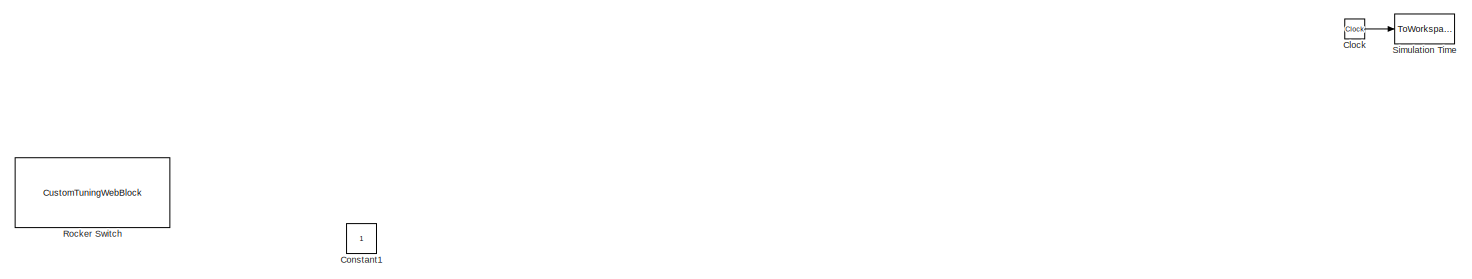
[diagram: root canvas - part 1/5, top left region]
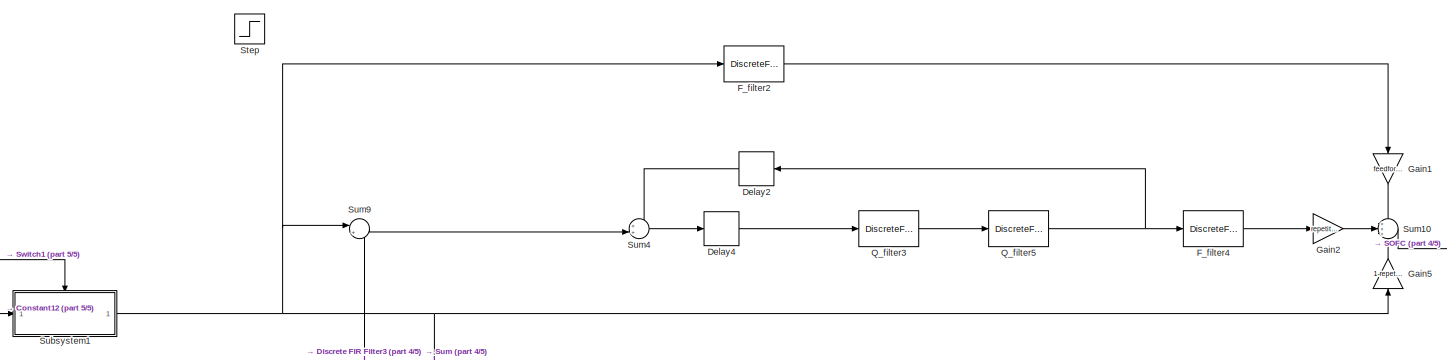
[diagram: root canvas - part 2/5, bottom center region]
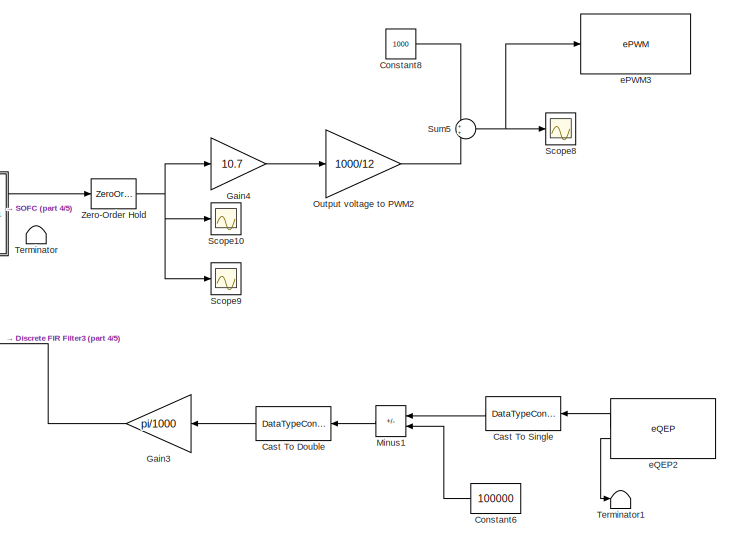
[diagram: root canvas - part 3/5, bottom right region]
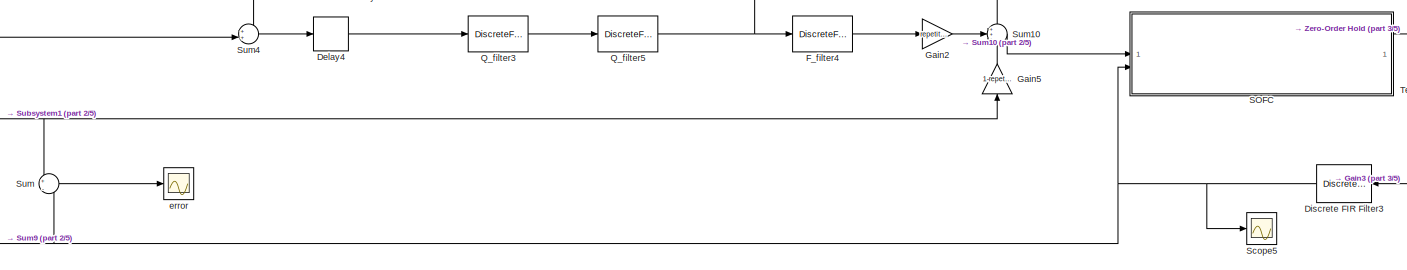
[diagram: root canvas - part 4/5, bottom center region]
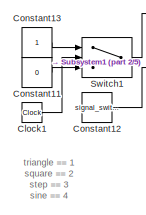
[diagram: root canvas - part 5/5, bottom left region]
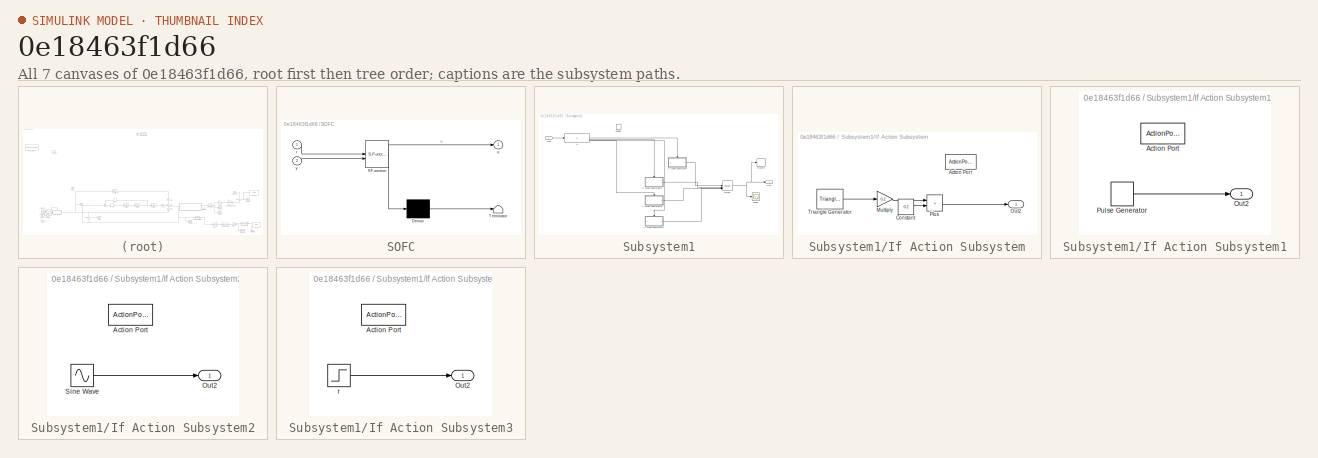
[diagram: thumbnail index - all 7 canvases of the model, root first then tree order]
MODEL slx_0e18463f1d66
KIND model
CONFIG AbsTol = auto
CONFIG EnableMultiTasking = on
CONFIG FixedStep = auto
CONFIG MaxStep = auto
CONFIG MinStep = auto
CONFIG RelTol = 1e-3
CONFIG SampleTimeConstraint = Unconstrained
CONFIG SolverName = FixedStepAuto
CONFIG StartTime = 0.0
CONFIG StopTime = Inf
BLOCK [DataTypeConversion] Cast To Double
  OutDataTypeStr = double
  RndMeth = Floor
  SaturateOnIntegerOverflow = off
BLOCK [DataTypeConversion] Cast To Single
  OutDataTypeStr = int32
  RndMeth = Floor
  SaturateOnIntegerOverflow = off
BLOCK [Clock] Clock
BLOCK [Clock] Clock1
BLOCK [Constant] Constant1
BLOCK [Constant] Constant11
  Value = 0
BLOCK [Constant] Constant12
  Value = signal_switch
BLOCK [Constant] Constant13
BLOCK [Constant] Constant6
  OutDataTypeStr = int32
  Value = 100000
BLOCK [Constant] Constant8
  Value = 1000
BLOCK [Delay] Delay2
  DelayLength = N1
  InputPortMap = u0
  SampleTime = Ts
BLOCK [Delay] Delay4
  DelayLength = Np-N1-N2
  InputPortMap = u0
  SampleTime = Ts
BLOCK [DiscreteFir] Discrete FIR Filter3
  Coefficients = [1]
  InputPortMap = u0
  OutputPortMap = o0
  SampleTime = Ts
BLOCK [DiscreteFilter] F_filter2
  Denominator = F_filter2_denom
  InputPortMap = u0
  Numerator = F_filter2_num
  SampleTime = Ts
BLOCK [DiscreteFilter] F_filter4
  Denominator = F_filter_denom
  InputPortMap = u0
  Numerator = real(F_filter_num)
  SampleTime = Ts
BLOCK [Gain] Gain1
  Gain = feedforward_switch
  NameLocation = left
BLOCK [Gain] Gain2
  Gain = repetitive_switch
BLOCK [Gain] Gain3
  Gain = pi/1000
BLOCK [Gain] Gain4
  Gain = 10.7
BLOCK [Gain] Gain5
  Gain = 1-repetitive_switch
  NameLocation = right
BLOCK [Sum] Minus1
  IconShape = rectangular
  Inputs = +-
BLOCK [Gain] Output voltage to PWM2
  Gain = 1000/12
BLOCK [DiscreteFilter] Q_filter3
  Denominator = Q_filter_denom
  InputPortMap = u0
  Numerator = Q_filter_num
  SampleTime = Ts
BLOCK [DiscreteFilter] Q_filter5
  Denominator = Q_filter_denom
  InputPortMap = u0
  Numerator = Q_filter_num
  SampleTime = Ts
BLOCK [CustomTuningWebBlock] Rocker Switch
  Configuration = {"components":[{"name":"CustomSwitchStateComponent","settings":{"position":[0,0,1,1],"states":[{"HitRegion":{"position":[0,0,0.5,1]},"Image":{"position":[0.13,0,1,0.75],"size":[1,0.75],"src":"data:image\/svg+xml;base64,PHN2ZyB4bWxucz0iaHR0cDovL3d3dy53My5vcmcvMjAwMC9zdmciIHhtbG5zOnhsaW5rPSJodHRwOi8vd3d3LnczLm9yZy8xOTk5L3hsaW5rIiB2aWV3Qm94PSIwIDAgNzUgMjQuOCI+PGRlZnM+PHN0eWxlPi5jbHMtMXtmaWxsOnVybCgjc...<+9002ch>
  LabelPosition = Hide
  ShowInitialText = on
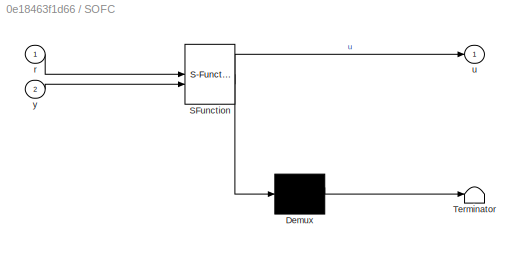
BLOCK [SubSystem] SOFC
  ErrorFcn = Stateflow.Translate.translate
  PermitHierarchicalResolution = ExplicitOnly
  SFBlockType = MATLAB Function
  TreatAsAtomicUnit = on
BLOCK [Demux] SOFC/ Demux 
  Outputs = 1
BLOCK [S-Function] SOFC/ SFunction 
  EnableBusSupport = on
  FunctionName = sf_sfun
  Parameters = A,B,C,K,L,N
  PortCounts = [2 2]
  SFcnIsStateOwnerBlock = off
  SFunctionDeploymentMode = off
  Tag = Stateflow S-Function 1
BLOCK [Terminator] SOFC/ Terminator 
BLOCK [Inport] SOFC/r
BLOCK [Outport] SOFC/u
BLOCK [Inport] SOFC/y
  Port = 2
BLOCK [Scope] Scope10
  Floating = off
  NumInputPorts = 1
  ScopeSpecificationString = Simulink.scopes.TimeScopeBlockCfg('CurrentConfiguration', extmgr.ConfigurationSet(extmgr.Configuration('Core','General UI',true),extmgr.Configuration('Core','Source UI',true),extmgr.Configuration('Sources','WiredSimulink',true,'DataLoggingVariableName','ScopeData3'),extmgr.Configuration('Visuals','Time Domain',true,'SerializedDisplays',{struct('MinYLimReal','-1.25','MaxYLimReal','1.25','YLabelReal...<+1408ch>
BLOCK [Scope] Scope5
  Floating = off
  NumInputPorts = 1
  ScopeSpecificationString = Simulink.scopes.TimeScopeBlockCfg('CurrentConfiguration', extmgr.ConfigurationSet(extmgr.Configuration('Core','General UI',true),extmgr.Configuration('Core','Source UI',true),extmgr.Configuration('Sources','WiredSimulink',true,'DataLoggingVariableName','ScopeData1'),extmgr.Configuration('Visuals','Time Domain',true,'SerializedDisplays',{struct('MinYLimReal','-0.51836','MaxYLimReal','4.63385','YLab...<+1411ch>
BLOCK [Scope] Scope8
  Floating = off
  NumInputPorts = 1
  ScopeSpecificationString = Simulink.scopes.TimeScopeBlockCfg('CurrentConfiguration', extmgr.ConfigurationSet(extmgr.Configuration('Core','General UI',true),extmgr.Configuration('Core','Source UI',true),extmgr.Configuration('Sources','WiredSimulink',true,'DataLoggingVariableName','ScopeData3'),extmgr.Configuration('Visuals','Time Domain',true,'SerializedDisplays',{struct('MinYLimReal','-114.58337','MaxYLimReal','2114.58343',...<+1436ch>
BLOCK [Scope] Scope9
  Floating = off
  NumInputPorts = 1
  ScopeSpecificationString = Simulink.scopes.TimeScopeBlockCfg('CurrentConfiguration', extmgr.ConfigurationSet(extmgr.Configuration('Core','General UI',true),extmgr.Configuration('Core','Source UI',true),extmgr.Configuration('Sources','WiredSimulink',true,'DataLoggingVariableName','ScopeData2'),extmgr.Configuration('Visuals','Time Domain',true,'SerializedDisplays',{struct('MinYLimReal','-1.25','MaxYLimReal','1.25','YLabelReal...<+1411ch>
BLOCK [ToWorkspace] Simulation Time
  FixptAsFi = on
  MaxDataPoints = inf
  SampleTime = -1
  VariableName = SimTime
BLOCK [Step] Step
  After = pi/2
  Before = 0.000001
  SampleTime = Ts
  Time = 15
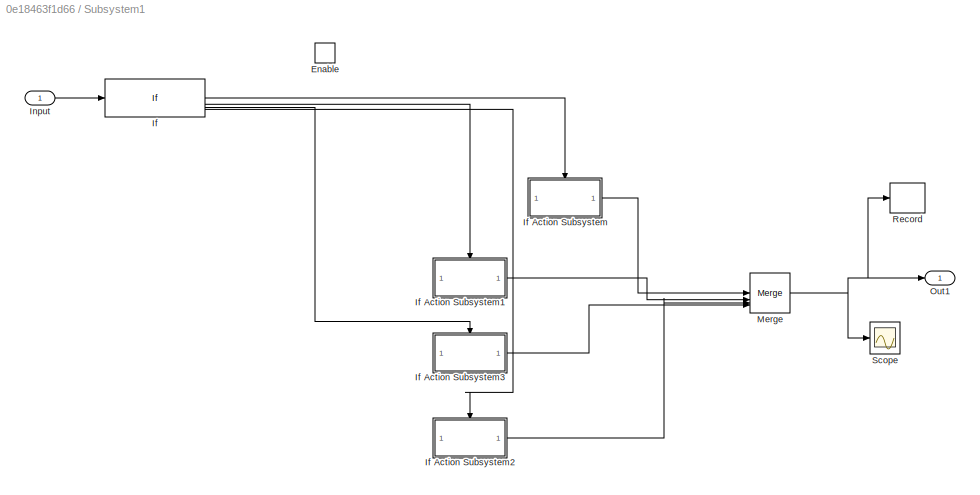
BLOCK [SubSystem] Subsystem1
BLOCK [EnablePort] Subsystem1/Enable
BLOCK [If] Subsystem1/If
  ElseIfExpressions = u1 == 2,u1==3
  IfExpression = u1 == 1
BLOCK [SubSystem] Subsystem1/If Action Subsystem
  TreatAsAtomicUnit = on
BLOCK [ActionPort] Subsystem1/If Action Subsystem/Action Port
BLOCK [Constant] Subsystem1/If Action Subsystem/Constant
  Value = 0.2
BLOCK [Gain] Subsystem1/If Action Subsystem/Multiply
  Gain = 0.2
BLOCK [Outport] Subsystem1/If Action Subsystem/Out2
BLOCK [Sum] Subsystem1/If Action Subsystem/Plus
  IconShape = rectangular
BLOCK [Reference] Subsystem1/If Action Subsystem/Triangle Generator  REF=spsTriangleGeneratorLib/Triangle
Generator
  LibrarySourceBlock = sps_lib/Sources/Signal Generator Sources/Triangle\nGenerator
  SourceBlock = spsTriangleGeneratorLib/Triangle\nGenerator
  SourceType = Triangle Generator
BLOCK [SubSystem] Subsystem1/If Action Subsystem1
  TreatAsAtomicUnit = on
BLOCK [ActionPort] Subsystem1/If Action Subsystem1/Action Port
BLOCK [Outport] Subsystem1/If Action Subsystem1/Out2
BLOCK [DiscretePulseGenerator] Subsystem1/If Action Subsystem1/Pulse Generator
  Amplitude = 0.4
  Period = 1/d_hz/Ts
  PulseWidth = 1/d_hz/2/Ts
  SampleTime = Ts
BLOCK [SubSystem] Subsystem1/If Action Subsystem2
  TreatAsAtomicUnit = on
BLOCK [ActionPort] Subsystem1/If Action Subsystem2/Action Port
BLOCK [Outport] Subsystem1/If Action Subsystem2/Out2
BLOCK [Sin] Subsystem1/If Action Subsystem2/Sine Wave
  Amplitude = 0.2
  Bias = 0.2
  Offset = 0.75*1/d_hz/Ts
  SampleTime = Ts
  Samples = 1/d_hz/Ts
  SineType = Sample based
BLOCK [SubSystem] Subsystem1/If Action Subsystem3
  TreatAsAtomicUnit = on
BLOCK [ActionPort] Subsystem1/If Action Subsystem3/Action Port
BLOCK [Outport] Subsystem1/If Action Subsystem3/Out2
BLOCK [Step] Subsystem1/If Action Subsystem3/r
  After = pi
  SampleTime = Ts
BLOCK [Inport] Subsystem1/Input
BLOCK [Merge] Subsystem1/Merge
  Inputs = 4
BLOCK [Outport] Subsystem1/Out1
BLOCK [Record] Subsystem1/Record
  FileSettingsInternal = {"entries":[{"content":{"excelSettings":{"content":{},"type":"Streamout.ExcelSettings"}},"type":"Streamout.FileSettingStorage","uuid":"050de38f-e3df-4709-aaf6-77aa2d34a637"}],"packageUris":["http://schema.mathworks.com/mf0/streamout_blocks/R2020a"],"version":"1.0"}
  Layout = [1 1]
  SignalsInternal = {"entries":[{"content":{"signals":[{"content":{"blockPath":["repetitive_control_experiment/Subsystem1/Record"],"channel":[],"dimensions":[1],"domain":"repetitive_control_experiment/Subsystem1/Record","lineColor":"#22b573","plots":[1],"port":1,"sid":[],"signalID":413,"signalName":"Merge"},"type":"RecordBlkView.Signal","uuid":"e4e628c4-692f-4f96-954e-0f0ac135052c"}]},"type":"RecordBlkView.InputSigna...<+142ch>
  VisualizationBindings = {"sparklinesplugin":{"info":[{"bindingParametersList":[],"subplotID":1}]}}
BLOCK [Scope] Subsystem1/Scope
  Floating = off
  NumInputPorts = 1
  ScopeSpecificationString = Simulink.scopes.TimeScopeBlockCfg('CurrentConfiguration', extmgr.ConfigurationSet(extmgr.Configuration('Core','General UI',true),extmgr.Configuration('Core','Source UI',true),extmgr.Configuration('Sources','WiredSimulink',true,'DataLoggingVariableName','ScopeData1'),extmgr.Configuration('Visuals','Time Domain',true,'SerializedDisplays',{struct('MinYLimReal','-0.05','MaxYLimReal','0.45','YLabelReal...<+1402ch>
BLOCK [Sum] Sum
  Inputs = +|-
BLOCK [Sum] Sum10
  Inputs = +++
BLOCK [Sum] Sum4
  Inputs = ++|
BLOCK [Sum] Sum5
BLOCK [Sum] Sum9
  Inputs = |+-
BLOCK [Switch] Switch1
  Criteria = u2 > Threshold
  InputSameDT = off
  SaturateOnIntegerOverflow = off
  Threshold = 1
BLOCK [Terminator] Terminator
BLOCK [Terminator] Terminator1
BLOCK [ZeroOrderHold] Zero-Order Hold
  SampleTime = Ts
BLOCK [Reference] ePWM3  REF=c2802xlib/ePWM
  SourceBlock = c2802xlib/ePWM
  SourceType = ePWM Type 1-4
  UserDataPersistent = on
BLOCK [Reference] eQEP2  REF=c280xlib/eQEP
  LibrarySourceBlock = c2837xDlib/eQEP
  SourceBlock = c280xlib/eQEP
  SourceType = C28x eQEP
BLOCK [Scope] error
  Floating = off
  NumInputPorts = 1
  ScopeSpecificationString = Simulink.scopes.TimeScopeBlockCfg('CurrentConfiguration', extmgr.ConfigurationSet(extmgr.Configuration('Core','General UI',true),extmgr.Configuration('Core','Source UI',true),extmgr.Configuration('Sources','WiredSimulink',true,'DataLoggingVariableName','ScopeData1'),extmgr.Configuration('Visuals','Time Domain',true),extmgr.Configuration('Tools','Plot Navigation',true),extmgr.Configuration('Tools',...<+58ch>
ANNOTATION (root): triangle == 1 square == 2 step == 3 sine == 4
LINE Cast To Double:1 -> Gain3:1
LINE Cast To Single:1 -> Minus1:1
LINE Clock1:1 -> Switch1:2
LINE Clock:1 -> Simulation Time:1
LINE Constant11:1 -> Switch1:3
LINE Constant12:1 -> Subsystem1:1
LINE Constant13:1 -> Switch1:1
LINE Constant6:1 -> Minus1:2
LINE Constant8:1 -> Sum5:1
LINE Delay2:1 -> Sum4:1
LINE Delay4:1 -> Q_filter3:1
NET Discrete FIR Filter3:1 -> SOFC:2, Scope5:1, Sum9:2, Sum:2
LINE F_filter2:1 -> Gain1:1
LINE F_filter4:1 -> Gain2:1
LINE Gain1:1 -> Sum10:1
LINE Gain2:1 -> Sum10:2
LINE Gain3:1 -> Discrete FIR Filter3:1
LINE Gain4:1 -> Output voltage to PWM2:1
LINE Gain5:1 -> Sum10:3
LINE Minus1:1 -> Cast To Double:1
LINE Output voltage to PWM2:1 -> Sum5:2
LINE Q_filter3:1 -> Q_filter5:1
NET Q_filter5:1 -> Delay2:1, F_filter4:1
LINE SOFC:1 -> Zero-Order Hold:1
LINE Subsystem1/If Action Subsystem/Constant:1 -> Subsystem1/If Action Subsystem/Plus:2
LINE Subsystem1/If Action Subsystem/Multiply:1 -> Subsystem1/If Action Subsystem/Plus:1
LINE Subsystem1/If Action Subsystem/Plus:1 -> Subsystem1/If Action Subsystem/Out2:1
LINE Subsystem1/If Action Subsystem/Triangle Generator:1 -> Subsystem1/If Action Subsystem/Multiply:1
LINE Subsystem1/If Action Subsystem1/Pulse Generator:1 -> Subsystem1/If Action Subsystem1/Out2:1
LINE Subsystem1/If Action Subsystem1:1 -> Subsystem1/Merge:2
LINE Subsystem1/If Action Subsystem2/Sine Wave:1 -> Subsystem1/If Action Subsystem2/Out2:1
LINE Subsystem1/If Action Subsystem2:1 -> Subsystem1/Merge:3
LINE Subsystem1/If Action Subsystem3/r:1 -> Subsystem1/If Action Subsystem3/Out2:1
LINE Subsystem1/If Action Subsystem3:1 -> Subsystem1/Merge:4
LINE Subsystem1/If Action Subsystem:1 -> Subsystem1/Merge:1
LINE Subsystem1/If:1 -> Subsystem1/If Action Subsystem:ifaction
LINE Subsystem1/If:2 -> Subsystem1/If Action Subsystem1:ifaction
LINE Subsystem1/If:3 -> Subsystem1/If Action Subsystem3:ifaction
LINE Subsystem1/If:4 -> Subsystem1/If Action Subsystem2:ifaction
LINE Subsystem1/Input:1 -> Subsystem1/If:1
NET Subsystem1/Merge:1 -> Subsystem1/Out1:1, Subsystem1/Record:1, Subsystem1/Scope:1
NET Subsystem1:1 -> F_filter2:1, Gain5:1, Sum9:1, Sum:1
LINE Sum10:1 -> SOFC:1
LINE Sum4:1 -> Delay4:1
NET Sum5:1 -> Scope8:1, ePWM3:1
LINE Sum9:1 -> Sum4:2
LINE Sum:1 -> error:1
LINE Switch1:1 -> Subsystem1:enable
NET Zero-Order Hold:1 -> Gain4:1, Scope10:1, Scope9:1
LINE eQEP2:1 -> Cast To Single:1
LINE eQEP2:2 -> Terminator1:1
note: NET lines group one-source signal fan-out (src -> all destinations, sorted); 1:1 wires keep LINE
CHART SOFC states=1 transitions=1
  STATE_LABEL 'eML_blk_kernel()'
  STATE_LABEL 'SCRIPT:\nfunction u = controller(r,y,A, B, C, K, L, N)\n\npersistent xhat xint;  %memory for the state\n\n  if isempty(xhat)  %local variable initialization\n      n=size(L,1);\n        xhat=zeros(n,1); \n      m = size(K,2)-n;\n        xint=zeros(m,1);  \n  end\nxaug=[xhat; xint]; %Augmented state include the state for the integrator\n%u = -K*xaug+N*r; %Control computation with integral action \nu_unsat = -K*...<+234ch>'
CHART  states=0 transitions=0
